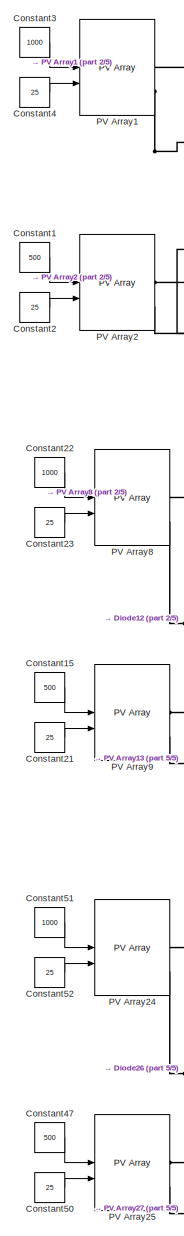
[diagram: root canvas - part 1/5, left side, full height]
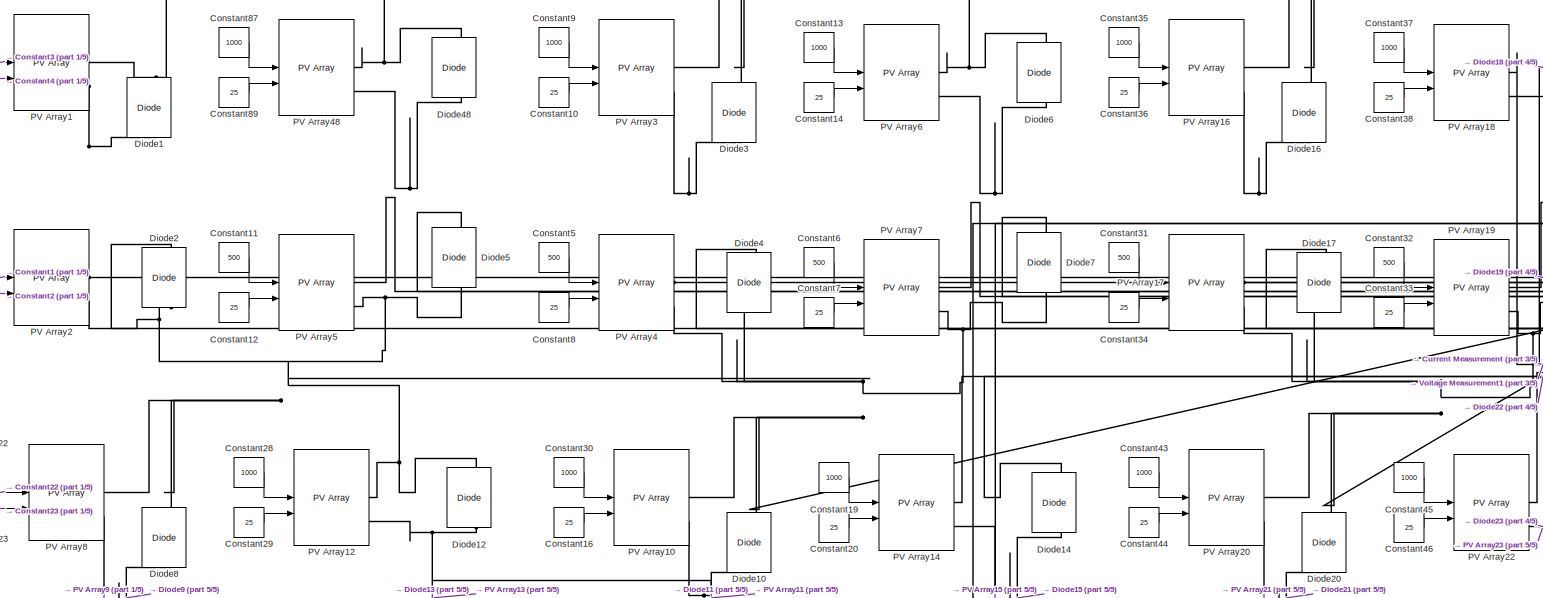
[diagram: root canvas - part 2/5, middle left region]
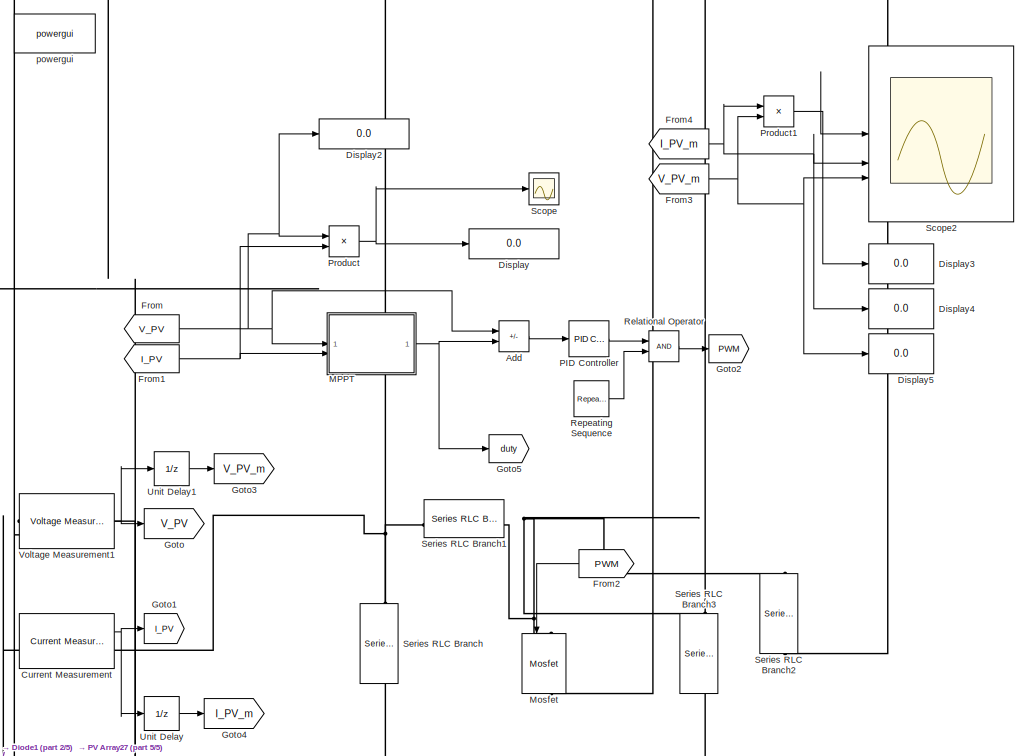
[diagram: root canvas - part 3/5, middle right region]
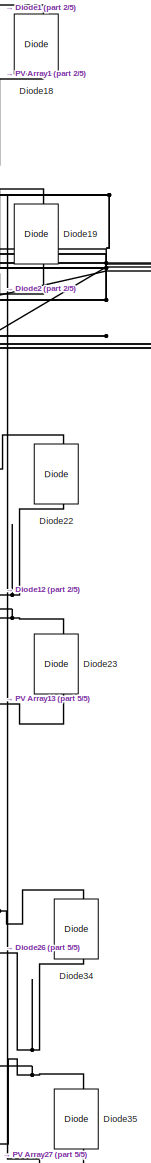
[diagram: root canvas - part 4/5, center side, full height]
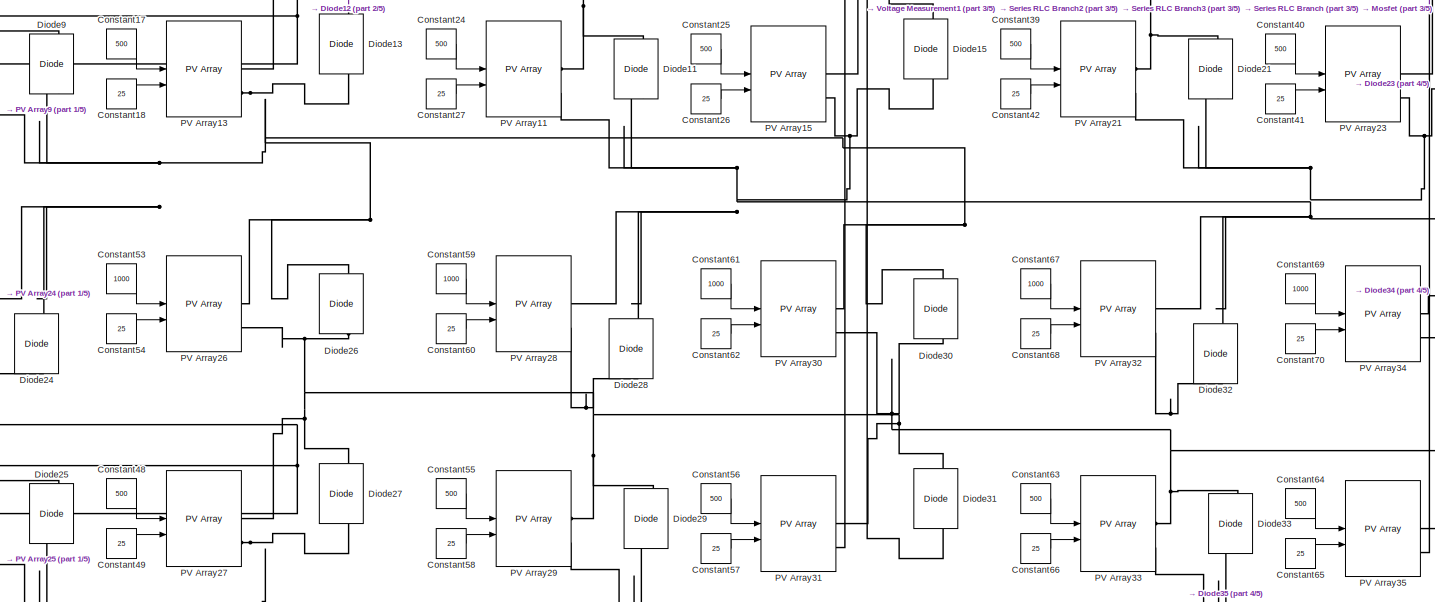
[diagram: root canvas - part 5/5, bottom left region]
MODEL slx_87ef97ad8870
KIND model
CONFIG AbsTol = auto
CONFIG EnableMultiTasking = off
CONFIG FixedStep = auto
CONFIG MaxStep = auto
CONFIG MinStep = auto
CONFIG RelTol = 1e-3
CONFIG SampleTimeConstraint = Unconstrained
CONFIG SolverName = VariableStepAuto
CONFIG StartTime = 0.0
CONFIG StopTime = 0.01
BLOCK [Sum] Add
  IconShape = rectangular
  Inputs = +-
BLOCK [Constant] Constant1
  Value = 500
BLOCK [Constant] Constant10
  Value = 25
BLOCK [Constant] Constant11
  Value = 500
BLOCK [Constant] Constant12
  Value = 25
BLOCK [Constant] Constant13
  Value = 1000
BLOCK [Constant] Constant14
  Value = 25
BLOCK [Constant] Constant15
  Value = 500
BLOCK [Constant] Constant16
  Value = 25
BLOCK [Constant] Constant17
  Value = 500
BLOCK [Constant] Constant18
  Value = 25
BLOCK [Constant] Constant19
  Value = 1000
BLOCK [Constant] Constant2
  Value = 25
BLOCK [Constant] Constant20
  Value = 25
BLOCK [Constant] Constant21
  Value = 25
BLOCK [Constant] Constant22
  Value = 1000
BLOCK [Constant] Constant23
  Value = 25
BLOCK [Constant] Constant24
  Value = 500
BLOCK [Constant] Constant25
  Value = 500
BLOCK [Constant] Constant26
  Value = 25
BLOCK [Constant] Constant27
  Value = 25
BLOCK [Constant] Constant28
  Value = 1000
BLOCK [Constant] Constant29
  Value = 25
BLOCK [Constant] Constant3
  Value = 1000
BLOCK [Constant] Constant30
  Value = 1000
BLOCK [Constant] Constant31
  Value = 500
BLOCK [Constant] Constant32
  Value = 500
BLOCK [Constant] Constant33
  Value = 25
BLOCK [Constant] Constant34
  Value = 25
BLOCK [Constant] Constant35
  Value = 1000
BLOCK [Constant] Constant36
  Value = 25
BLOCK [Constant] Constant37
  Value = 1000
BLOCK [Constant] Constant38
  Value = 25
BLOCK [Constant] Constant39
  Value = 500
BLOCK [Constant] Constant4
  Value = 25
BLOCK [Constant] Constant40
  Value = 500
BLOCK [Constant] Constant41
  Value = 25
BLOCK [Constant] Constant42
  Value = 25
BLOCK [Constant] Constant43
  Value = 1000
BLOCK [Constant] Constant44
  Value = 25
BLOCK [Constant] Constant45
  Value = 1000
BLOCK [Constant] Constant46
  Value = 25
BLOCK [Constant] Constant47
  Value = 500
BLOCK [Constant] Constant48
  Value = 500
BLOCK [Constant] Constant49
  Value = 25
BLOCK [Constant] Constant5
  Value = 500
BLOCK [Constant] Constant50
  Value = 25
BLOCK [Constant] Constant51
  Value = 1000
BLOCK [Constant] Constant52
  Value = 25
BLOCK [Constant] Constant53
  Value = 1000
BLOCK [Constant] Constant54
  Value = 25
BLOCK [Constant] Constant55
  Value = 500
BLOCK [Constant] Constant56
  Value = 500
BLOCK [Constant] Constant57
  Value = 25
BLOCK [Constant] Constant58
  Value = 25
BLOCK [Constant] Constant59
  Value = 1000
BLOCK [Constant] Constant6
  Value = 500
BLOCK [Constant] Constant60
  Value = 25
BLOCK [Constant] Constant61
  Value = 1000
BLOCK [Constant] Constant62
  Value = 25
BLOCK [Constant] Constant63
  Value = 500
BLOCK [Constant] Constant64
  Value = 500
BLOCK [Constant] Constant65
  Value = 25
BLOCK [Constant] Constant66
  Value = 25
BLOCK [Constant] Constant67
  Value = 1000
BLOCK [Constant] Constant68
  Value = 25
BLOCK [Constant] Constant69
  Value = 1000
BLOCK [Constant] Constant7
  Value = 25
BLOCK [Constant] Constant70
  Value = 25
BLOCK [Constant] Constant8
  Value = 25
BLOCK [Constant] Constant87
  Value = 1000
BLOCK [Constant] Constant89
  Value = 25
BLOCK [Constant] Constant9
  Value = 1000
BLOCK [Reference] Current Measurement  REF=spsCurrentMeasurementLib/Current Measurement
  LibrarySourceBlock = sps_lib/Sensors and Measurements/Current Measurement
  SourceBlock = spsCurrentMeasurementLib/Current Measurement
  SourceType = Current Measurement
  UserDataPersistent = on
BLOCK [Reference] Diode1  REF=spsDiodeLib/Diode
  LibrarySourceBlock = sps_lib/Power Electronics/Diode
  NameLocation = right
  SourceBlock = spsDiodeLib/Diode
  SourceType = Diode
BLOCK [Reference] Diode10  REF=spsDiodeLib/Diode
  LibrarySourceBlock = sps_lib/Power Electronics/Diode
  NameLocation = right
  SourceBlock = spsDiodeLib/Diode
  SourceType = Diode
BLOCK [Reference] Diode11  REF=spsDiodeLib/Diode
  LibrarySourceBlock = sps_lib/Power Electronics/Diode
  NameLocation = right
  SourceBlock = spsDiodeLib/Diode
  SourceType = Diode
BLOCK [Reference] Diode12  REF=spsDiodeLib/Diode
  LibrarySourceBlock = sps_lib/Power Electronics/Diode
  NameLocation = right
  SourceBlock = spsDiodeLib/Diode
  SourceType = Diode
BLOCK [Reference] Diode13  REF=spsDiodeLib/Diode
  LibrarySourceBlock = sps_lib/Power Electronics/Diode
  NameLocation = right
  SourceBlock = spsDiodeLib/Diode
  SourceType = Diode
BLOCK [Reference] Diode14  REF=spsDiodeLib/Diode
  LibrarySourceBlock = sps_lib/Power Electronics/Diode
  NameLocation = right
  SourceBlock = spsDiodeLib/Diode
  SourceType = Diode
BLOCK [Reference] Diode15  REF=spsDiodeLib/Diode
  LibrarySourceBlock = sps_lib/Power Electronics/Diode
  NameLocation = right
  SourceBlock = spsDiodeLib/Diode
  SourceType = Diode
BLOCK [Reference] Diode16  REF=spsDiodeLib/Diode
  LibrarySourceBlock = sps_lib/Power Electronics/Diode
  NameLocation = right
  SourceBlock = spsDiodeLib/Diode
  SourceType = Diode
BLOCK [Reference] Diode17  REF=spsDiodeLib/Diode
  LibrarySourceBlock = sps_lib/Power Electronics/Diode
  NameLocation = right
  SourceBlock = spsDiodeLib/Diode
  SourceType = Diode
BLOCK [Reference] Diode18  REF=spsDiodeLib/Diode
  LibrarySourceBlock = sps_lib/Power Electronics/Diode
  NameLocation = right
  SourceBlock = spsDiodeLib/Diode
  SourceType = Diode
BLOCK [Reference] Diode19  REF=spsDiodeLib/Diode
  LibrarySourceBlock = sps_lib/Power Electronics/Diode
  NameLocation = right
  SourceBlock = spsDiodeLib/Diode
  SourceType = Diode
BLOCK [Reference] Diode2  REF=spsDiodeLib/Diode
  LibrarySourceBlock = sps_lib/Power Electronics/Diode
  NameLocation = right
  SourceBlock = spsDiodeLib/Diode
  SourceType = Diode
BLOCK [Reference] Diode20  REF=spsDiodeLib/Diode
  LibrarySourceBlock = sps_lib/Power Electronics/Diode
  NameLocation = right
  SourceBlock = spsDiodeLib/Diode
  SourceType = Diode
BLOCK [Reference] Diode21  REF=spsDiodeLib/Diode
  LibrarySourceBlock = sps_lib/Power Electronics/Diode
  NameLocation = right
  SourceBlock = spsDiodeLib/Diode
  SourceType = Diode
BLOCK [Reference] Diode22  REF=spsDiodeLib/Diode
  LibrarySourceBlock = sps_lib/Power Electronics/Diode
  NameLocation = right
  SourceBlock = spsDiodeLib/Diode
  SourceType = Diode
BLOCK [Reference] Diode23  REF=spsDiodeLib/Diode
  LibrarySourceBlock = sps_lib/Power Electronics/Diode
  NameLocation = right
  SourceBlock = spsDiodeLib/Diode
  SourceType = Diode
BLOCK [Reference] Diode24  REF=spsDiodeLib/Diode
  LibrarySourceBlock = sps_lib/Power Electronics/Diode
  NameLocation = right
  SourceBlock = spsDiodeLib/Diode
  SourceType = Diode
BLOCK [Reference] Diode25  REF=spsDiodeLib/Diode
  LibrarySourceBlock = sps_lib/Power Electronics/Diode
  NameLocation = right
  SourceBlock = spsDiodeLib/Diode
  SourceType = Diode
BLOCK [Reference] Diode26  REF=spsDiodeLib/Diode
  LibrarySourceBlock = sps_lib/Power Electronics/Diode
  NameLocation = right
  SourceBlock = spsDiodeLib/Diode
  SourceType = Diode
BLOCK [Reference] Diode27  REF=spsDiodeLib/Diode
  LibrarySourceBlock = sps_lib/Power Electronics/Diode
  NameLocation = right
  SourceBlock = spsDiodeLib/Diode
  SourceType = Diode
BLOCK [Reference] Diode28  REF=spsDiodeLib/Diode
  LibrarySourceBlock = sps_lib/Power Electronics/Diode
  NameLocation = right
  SourceBlock = spsDiodeLib/Diode
  SourceType = Diode
BLOCK [Reference] Diode29  REF=spsDiodeLib/Diode
  LibrarySourceBlock = sps_lib/Power Electronics/Diode
  NameLocation = right
  SourceBlock = spsDiodeLib/Diode
  SourceType = Diode
BLOCK [Reference] Diode3  REF=spsDiodeLib/Diode
  LibrarySourceBlock = sps_lib/Power Electronics/Diode
  NameLocation = right
  SourceBlock = spsDiodeLib/Diode
  SourceType = Diode
BLOCK [Reference] Diode30  REF=spsDiodeLib/Diode
  LibrarySourceBlock = sps_lib/Power Electronics/Diode
  NameLocation = right
  SourceBlock = spsDiodeLib/Diode
  SourceType = Diode
BLOCK [Reference] Diode31  REF=spsDiodeLib/Diode
  LibrarySourceBlock = sps_lib/Power Electronics/Diode
  NameLocation = right
  SourceBlock = spsDiodeLib/Diode
  SourceType = Diode
BLOCK [Reference] Diode32  REF=spsDiodeLib/Diode
  LibrarySourceBlock = sps_lib/Power Electronics/Diode
  NameLocation = right
  SourceBlock = spsDiodeLib/Diode
  SourceType = Diode
BLOCK [Reference] Diode33  REF=spsDiodeLib/Diode
  LibrarySourceBlock = sps_lib/Power Electronics/Diode
  NameLocation = right
  SourceBlock = spsDiodeLib/Diode
  SourceType = Diode
BLOCK [Reference] Diode34  REF=spsDiodeLib/Diode
  LibrarySourceBlock = sps_lib/Power Electronics/Diode
  NameLocation = right
  SourceBlock = spsDiodeLib/Diode
  SourceType = Diode
BLOCK [Reference] Diode35  REF=spsDiodeLib/Diode
  LibrarySourceBlock = sps_lib/Power Electronics/Diode
  NameLocation = right
  SourceBlock = spsDiodeLib/Diode
  SourceType = Diode
BLOCK [Reference] Diode4  REF=spsDiodeLib/Diode
  LibrarySourceBlock = sps_lib/Power Electronics/Diode
  NameLocation = right
  SourceBlock = spsDiodeLib/Diode
  SourceType = Diode
BLOCK [Reference] Diode48  REF=spsDiodeLib/Diode
  LibrarySourceBlock = sps_lib/Power Electronics/Diode
  NameLocation = right
  SourceBlock = spsDiodeLib/Diode
  SourceType = Diode
BLOCK [Reference] Diode5  REF=spsDiodeLib/Diode
  LibrarySourceBlock = sps_lib/Power Electronics/Diode
  NameLocation = right
  SourceBlock = spsDiodeLib/Diode
  SourceType = Diode
BLOCK [Reference] Diode6  REF=spsDiodeLib/Diode
  LibrarySourceBlock = sps_lib/Power Electronics/Diode
  NameLocation = right
  SourceBlock = spsDiodeLib/Diode
  SourceType = Diode
BLOCK [Reference] Diode7  REF=spsDiodeLib/Diode
  LibrarySourceBlock = sps_lib/Power Electronics/Diode
  NameLocation = right
  SourceBlock = spsDiodeLib/Diode
  SourceType = Diode
BLOCK [Reference] Diode8  REF=spsDiodeLib/Diode
  LibrarySourceBlock = sps_lib/Power Electronics/Diode
  NameLocation = right
  SourceBlock = spsDiodeLib/Diode
  SourceType = Diode
BLOCK [Reference] Diode9  REF=spsDiodeLib/Diode
  LibrarySourceBlock = sps_lib/Power Electronics/Diode
  NameLocation = right
  SourceBlock = spsDiodeLib/Diode
  SourceType = Diode
BLOCK [Display] Display
  Decimation = 1
BLOCK [Display] Display2
  Decimation = 1
BLOCK [Display] Display3
  Decimation = 1
BLOCK [Display] Display4
  Decimation = 1
BLOCK [Display] Display5
  Decimation = 1
BLOCK [From] From
  GotoTag = V_PV
BLOCK [From] From1
  GotoTag = I_PV
BLOCK [From] From2
  GotoTag = PWM
  NameLocation = top
BLOCK [From] From3
  GotoTag = V_PV_m
BLOCK [From] From4
  GotoTag = I_PV_m
BLOCK [Goto] Goto
  GotoTag = V_PV
BLOCK [Goto] Goto1
  GotoTag = I_PV
BLOCK [Goto] Goto2
  GotoTag = PWM
  NameLocation = top
BLOCK [Goto] Goto3
  GotoTag = V_PV_m
BLOCK [Goto] Goto4
  GotoTag = I_PV_m
BLOCK [Goto] Goto5
  GotoTag = duty
  NameLocation = top
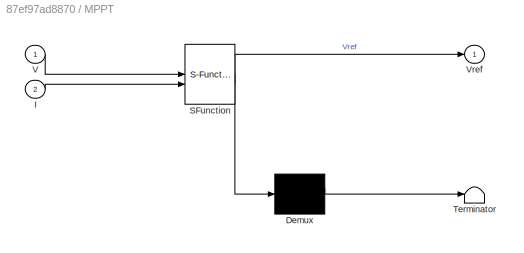
BLOCK [SubSystem] MPPT
  ErrorFcn = Stateflow.Translate.translate
  PermitHierarchicalResolution = ExplicitOnly
  SFBlockType = MATLAB Function
  TreatAsAtomicUnit = on
BLOCK [Demux] MPPT/ Demux 
  Outputs = 1
BLOCK [S-Function] MPPT/ SFunction 
  EnableBusSupport = on
  FunctionName = sf_sfun
  PortCounts = [2 2]
  SFcnIsStateOwnerBlock = off
  SFunctionDeploymentMode = off
  Tag = Stateflow S-Function 2
BLOCK [Terminator] MPPT/ Terminator 
BLOCK [Inport] MPPT/I
  Port = 2
BLOCK [Inport] MPPT/V
BLOCK [Outport] MPPT/Vref
BLOCK [Reference] Mosfet  REF=spsMosfetLib/Mosfet
  LibrarySourceBlock = sps_lib/Power Electronics/Mosfet
  NameLocation = left
  SourceBlock = spsMosfetLib/Mosfet
  SourceType = Mosfet
BLOCK [Reference] PID Controller  REF=slpidlib/PID Controller
  LibrarySourceBlock = simulink/Continuous/PID Controller
  SourceBlock = slpidlib/PID Controller
  SourceType = PID 1dof
BLOCK [Reference] PV Array1  REF=spsPVArrayLib/PV Array
  LibrarySourceBlock = sps_lib/Sources/PV Array
  SourceBlock = spsPVArrayLib/PV Array
  SourceType = PV array
BLOCK [Reference] PV Array10  REF=spsPVArrayLib/PV Array
  LibrarySourceBlock = sps_lib/Sources/PV Array
  SourceBlock = spsPVArrayLib/PV Array
  SourceType = PV array
BLOCK [Reference] PV Array11  REF=spsPVArrayLib/PV Array
  LibrarySourceBlock = sps_lib/Sources/PV Array
  SourceBlock = spsPVArrayLib/PV Array
  SourceType = PV array
BLOCK [Reference] PV Array12  REF=spsPVArrayLib/PV Array
  LibrarySourceBlock = sps_lib/Sources/PV Array
  SourceBlock = spsPVArrayLib/PV Array
  SourceType = PV array
BLOCK [Reference] PV Array13  REF=spsPVArrayLib/PV Array
  LibrarySourceBlock = sps_lib/Sources/PV Array
  SourceBlock = spsPVArrayLib/PV Array
  SourceType = PV array
BLOCK [Reference] PV Array14  REF=spsPVArrayLib/PV Array
  LibrarySourceBlock = sps_lib/Sources/PV Array
  SourceBlock = spsPVArrayLib/PV Array
  SourceType = PV array
BLOCK [Reference] PV Array15  REF=spsPVArrayLib/PV Array
  LibrarySourceBlock = sps_lib/Sources/PV Array
  SourceBlock = spsPVArrayLib/PV Array
  SourceType = PV array
BLOCK [Reference] PV Array16  REF=spsPVArrayLib/PV Array
  LibrarySourceBlock = sps_lib/Sources/PV Array
  SourceBlock = spsPVArrayLib/PV Array
  SourceType = PV array
BLOCK [Reference] PV Array17  REF=spsPVArrayLib/PV Array
  LibrarySourceBlock = sps_lib/Sources/PV Array
  SourceBlock = spsPVArrayLib/PV Array
  SourceType = PV array
BLOCK [Reference] PV Array18  REF=spsPVArrayLib/PV Array
  LibrarySourceBlock = sps_lib/Sources/PV Array
  SourceBlock = spsPVArrayLib/PV Array
  SourceType = PV array
BLOCK [Reference] PV Array19  REF=spsPVArrayLib/PV Array
  LibrarySourceBlock = sps_lib/Sources/PV Array
  SourceBlock = spsPVArrayLib/PV Array
  SourceType = PV array
BLOCK [Reference] PV Array2  REF=spsPVArrayLib/PV Array
  LibrarySourceBlock = sps_lib/Sources/PV Array
  SourceBlock = spsPVArrayLib/PV Array
  SourceType = PV array
BLOCK [Reference] PV Array20  REF=spsPVArrayLib/PV Array
  LibrarySourceBlock = sps_lib/Sources/PV Array
  SourceBlock = spsPVArrayLib/PV Array
  SourceType = PV array
BLOCK [Reference] PV Array21  REF=spsPVArrayLib/PV Array
  LibrarySourceBlock = sps_lib/Sources/PV Array
  SourceBlock = spsPVArrayLib/PV Array
  SourceType = PV array
BLOCK [Reference] PV Array22  REF=spsPVArrayLib/PV Array
  LibrarySourceBlock = sps_lib/Sources/PV Array
  SourceBlock = spsPVArrayLib/PV Array
  SourceType = PV array
BLOCK [Reference] PV Array23  REF=spsPVArrayLib/PV Array
  LibrarySourceBlock = sps_lib/Sources/PV Array
  SourceBlock = spsPVArrayLib/PV Array
  SourceType = PV array
BLOCK [Reference] PV Array24  REF=spsPVArrayLib/PV Array
  LibrarySourceBlock = sps_lib/Sources/PV Array
  SourceBlock = spsPVArrayLib/PV Array
  SourceType = PV array
BLOCK [Reference] PV Array25  REF=spsPVArrayLib/PV Array
  LibrarySourceBlock = sps_lib/Sources/PV Array
  SourceBlock = spsPVArrayLib/PV Array
  SourceType = PV array
BLOCK [Reference] PV Array26  REF=spsPVArrayLib/PV Array
  LibrarySourceBlock = sps_lib/Sources/PV Array
  SourceBlock = spsPVArrayLib/PV Array
  SourceType = PV array
BLOCK [Reference] PV Array27  REF=spsPVArrayLib/PV Array
  LibrarySourceBlock = sps_lib/Sources/PV Array
  SourceBlock = spsPVArrayLib/PV Array
  SourceType = PV array
BLOCK [Reference] PV Array28  REF=spsPVArrayLib/PV Array
  LibrarySourceBlock = sps_lib/Sources/PV Array
  SourceBlock = spsPVArrayLib/PV Array
  SourceType = PV array
BLOCK [Reference] PV Array29  REF=spsPVArrayLib/PV Array
  LibrarySourceBlock = sps_lib/Sources/PV Array
  SourceBlock = spsPVArrayLib/PV Array
  SourceType = PV array
BLOCK [Reference] PV Array3  REF=spsPVArrayLib/PV Array
  LibrarySourceBlock = sps_lib/Sources/PV Array
  SourceBlock = spsPVArrayLib/PV Array
  SourceType = PV array
BLOCK [Reference] PV Array30  REF=spsPVArrayLib/PV Array
  LibrarySourceBlock = sps_lib/Sources/PV Array
  SourceBlock = spsPVArrayLib/PV Array
  SourceType = PV array
BLOCK [Reference] PV Array31  REF=spsPVArrayLib/PV Array
  LibrarySourceBlock = sps_lib/Sources/PV Array
  SourceBlock = spsPVArrayLib/PV Array
  SourceType = PV array
BLOCK [Reference] PV Array32  REF=spsPVArrayLib/PV Array
  LibrarySourceBlock = sps_lib/Sources/PV Array
  SourceBlock = spsPVArrayLib/PV Array
  SourceType = PV array
BLOCK [Reference] PV Array33  REF=spsPVArrayLib/PV Array
  LibrarySourceBlock = sps_lib/Sources/PV Array
  SourceBlock = spsPVArrayLib/PV Array
  SourceType = PV array
BLOCK [Reference] PV Array34  REF=spsPVArrayLib/PV Array
  LibrarySourceBlock = sps_lib/Sources/PV Array
  SourceBlock = spsPVArrayLib/PV Array
  SourceType = PV array
BLOCK [Reference] PV Array35  REF=spsPVArrayLib/PV Array
  LibrarySourceBlock = sps_lib/Sources/PV Array
  SourceBlock = spsPVArrayLib/PV Array
  SourceType = PV array
BLOCK [Reference] PV Array4  REF=spsPVArrayLib/PV Array
  LibrarySourceBlock = sps_lib/Sources/PV Array
  SourceBlock = spsPVArrayLib/PV Array
  SourceType = PV array
BLOCK [Reference] PV Array48  REF=spsPVArrayLib/PV Array
  LibrarySourceBlock = sps_lib/Sources/PV Array
  SourceBlock = spsPVArrayLib/PV Array
  SourceType = PV array
BLOCK [Reference] PV Array5  REF=spsPVArrayLib/PV Array
  LibrarySourceBlock = sps_lib/Sources/PV Array
  SourceBlock = spsPVArrayLib/PV Array
  SourceType = PV array
BLOCK [Reference] PV Array6  REF=spsPVArrayLib/PV Array
  LibrarySourceBlock = sps_lib/Sources/PV Array
  SourceBlock = spsPVArrayLib/PV Array
  SourceType = PV array
BLOCK [Reference] PV Array7  REF=spsPVArrayLib/PV Array
  LibrarySourceBlock = sps_lib/Sources/PV Array
  SourceBlock = spsPVArrayLib/PV Array
  SourceType = PV array
BLOCK [Reference] PV Array8  REF=spsPVArrayLib/PV Array
  LibrarySourceBlock = sps_lib/Sources/PV Array
  SourceBlock = spsPVArrayLib/PV Array
  SourceType = PV array
BLOCK [Reference] PV Array9  REF=spsPVArrayLib/PV Array
  LibrarySourceBlock = sps_lib/Sources/PV Array
  SourceBlock = spsPVArrayLib/PV Array
  SourceType = PV array
BLOCK [Product] Product
BLOCK [Product] Product1
BLOCK [RelationalOperator] Relational Operator
  InputSameDT = off
  OutDataTypeStr = boolean
  RndMeth = Simplest
BLOCK [Reference] Repeating Sequence  REF=simulink/Sources/Repeating
Sequence
  SourceBlock = simulink/Sources/Repeating\nSequence
  SourceType = Repeating table
BLOCK [Scope] Scope
  Floating = off
  NumInputPorts = 1
  ScopeSpecificationString = Simulink.scopes.TimeScopeBlockCfg('CurrentConfiguration', extmgr.ConfigurationSet(extmgr.Configuration('Core','General UI',true),extmgr.Configuration('Core','Source UI',true),extmgr.Configuration('Sources','WiredSimulink',true),extmgr.Configuration('Visuals','Time Domain',true,'SerializedDisplays',{struct('MinYLimReal','-24.53787','MaxYLimReal','130.66511','YLabelReal','','MinYLimMag','0.00000','M...<+1435ch>
BLOCK [Scope] Scope2
  Floating = off
  NumInputPorts = 3
  ScopeSpecificationString = Simulink.scopes.TimeScopeBlockCfg('CurrentConfiguration', extmgr.ConfigurationSet(extmgr.Configuration('Core','General UI',true,'FigureColor',[1 1 1]),extmgr.Configuration('Core','Source UI',true),extmgr.Configuration('Sources','WiredSimulink',true,'DataLoggingVariableName','ScopeData2'),extmgr.Configuration('Visuals','Time Domain',true,'SerializedDisplays',{struct('MinYLimReal','-55.00000','MaxYL...<+3173ch>
BLOCK [Reference] Series RLC Branch  REF=spsSeriesRLCBranchLib/Series RLC Branch
  LibrarySourceBlock = sps_lib/Passives/Series RLC Branch
  NameLocation = left
  SourceBlock = spsSeriesRLCBranchLib/Series RLC Branch
  SourceType = Series RLC Branch
BLOCK [Reference] Series RLC Branch1  REF=spsSeriesRLCBranchLib/Series RLC Branch
  LibrarySourceBlock = sps_lib/Passives/Series RLC Branch
  NameLocation = top
  SourceBlock = spsSeriesRLCBranchLib/Series RLC Branch
  SourceType = Series RLC Branch
BLOCK [Reference] Series RLC Branch2  REF=spsSeriesRLCBranchLib/Series RLC Branch
  LibrarySourceBlock = sps_lib/Passives/Series RLC Branch
  NameLocation = left
  SourceBlock = spsSeriesRLCBranchLib/Series RLC Branch
  SourceType = Series RLC Branch
BLOCK [Reference] Series RLC Branch3  REF=spsSeriesRLCBranchLib/Series RLC Branch
  LibrarySourceBlock = sps_lib/Passives/Series RLC Branch
  NameLocation = left
  SourceBlock = spsSeriesRLCBranchLib/Series RLC Branch
  SourceType = Series RLC Branch
BLOCK [UnitDelay] Unit Delay
  HasFrameUpgradeWarning = on
  SampleTime = -1
BLOCK [UnitDelay] Unit Delay1
  HasFrameUpgradeWarning = on
  SampleTime = -1
BLOCK [Reference] Voltage Measurement1  REF=spsVoltageMeasurementLib/Voltage Measurement
  LibrarySourceBlock = sps_lib/Sensors and Measurements/Voltage Measurement
  SourceBlock = spsVoltageMeasurementLib/Voltage Measurement
  SourceType = Voltage Measurement
  UserDataPersistent = on
BLOCK [Reference] powergui  REF=sps_lib/powergui
  LibrarySourceBlock = sps_lib/powergui
  Priority = 1
  SourceBlock = sps_lib/powergui
  SourceType = PSB option menu block
LINE Add:1 -> PID Controller:1
LINE Constant10:1 -> PV Array3:2
LINE Constant11:1 -> PV Array5:1
LINE Constant12:1 -> PV Array5:2
LINE Constant13:1 -> PV Array6:1
LINE Constant14:1 -> PV Array6:2
LINE Constant15:1 -> PV Array9:1
LINE Constant16:1 -> PV Array10:2
LINE Constant17:1 -> PV Array13:1
LINE Constant18:1 -> PV Array13:2
LINE Constant19:1 -> PV Array14:1
LINE Constant1:1 -> PV Array2:1
LINE Constant20:1 -> PV Array14:2
LINE Constant21:1 -> PV Array9:2
LINE Constant22:1 -> PV Array8:1
LINE Constant23:1 -> PV Array8:2
LINE Constant24:1 -> PV Array11:1
LINE Constant25:1 -> PV Array15:1
LINE Constant26:1 -> PV Array15:2
LINE Constant27:1 -> PV Array11:2
LINE Constant28:1 -> PV Array12:1
LINE Constant29:1 -> PV Array12:2
LINE Constant2:1 -> PV Array2:2
LINE Constant30:1 -> PV Array10:1
LINE Constant31:1 -> PV Array17:1
LINE Constant32:1 -> PV Array19:1
LINE Constant33:1 -> PV Array19:2
LINE Constant34:1 -> PV Array17:2
LINE Constant35:1 -> PV Array16:1
LINE Constant36:1 -> PV Array16:2
LINE Constant37:1 -> PV Array18:1
LINE Constant38:1 -> PV Array18:2
LINE Constant39:1 -> PV Array21:1
LINE Constant3:1 -> PV Array1:1
LINE Constant40:1 -> PV Array23:1
LINE Constant41:1 -> PV Array23:2
LINE Constant42:1 -> PV Array21:2
LINE Constant43:1 -> PV Array20:1
LINE Constant44:1 -> PV Array20:2
LINE Constant45:1 -> PV Array22:1
LINE Constant46:1 -> PV Array22:2
LINE Constant47:1 -> PV Array25:1
LINE Constant48:1 -> PV Array27:1
LINE Constant49:1 -> PV Array27:2
LINE Constant4:1 -> PV Array1:2
LINE Constant50:1 -> PV Array25:2
LINE Constant51:1 -> PV Array24:1
LINE Constant52:1 -> PV Array24:2
LINE Constant53:1 -> PV Array26:1
LINE Constant54:1 -> PV Array26:2
LINE Constant55:1 -> PV Array29:1
LINE Constant56:1 -> PV Array31:1
LINE Constant57:1 -> PV Array31:2
LINE Constant58:1 -> PV Array29:2
LINE Constant59:1 -> PV Array28:1
LINE Constant5:1 -> PV Array4:1
LINE Constant60:1 -> PV Array28:2
LINE Constant61:1 -> PV Array30:1
LINE Constant62:1 -> PV Array30:2
LINE Constant63:1 -> PV Array33:1
LINE Constant64:1 -> PV Array35:1
LINE Constant65:1 -> PV Array35:2
LINE Constant66:1 -> PV Array33:2
LINE Constant67:1 -> PV Array32:1
LINE Constant68:1 -> PV Array32:2
LINE Constant69:1 -> PV Array34:1
LINE Constant6:1 -> PV Array7:1
LINE Constant70:1 -> PV Array34:2
LINE Constant7:1 -> PV Array7:2
LINE Constant87:1 -> PV Array48:1
LINE Constant89:1 -> PV Array48:2
LINE Constant8:1 -> PV Array4:2
LINE Constant9:1 -> PV Array3:1
NET Current Measurement:1 -> Goto1:1, Unit Delay:1
NET From1:1 -> MPPT:2, Product:2
LINE From2:1 -> Mosfet:1
NET From3:1 -> Display5:1, Product1:2, Scope2:3
NET From4:1 -> Display4:1, Product1:1, Scope2:2
NET From:1 -> Add:1, Display2:1, MPPT:1, Product:1
NET MPPT:1 -> Add:2, Goto5:1
LINE PID Controller:1 -> Relational Operator:1
NET Product1:1 -> Display3:1, Scope2:1
NET Product:1 -> Display:1, Scope:1
LINE Relational Operator:1 -> Goto2:1
LINE Repeating Sequence:1 -> Relational Operator:2
LINE Unit Delay1:1 -> Goto3:1
LINE Unit Delay:1 -> Goto4:1
NET Voltage Measurement1:1 -> Goto:1, Unit Delay1:1
PNET net1: Current Measurement:LConn1 -- Diode16:RConn1 -- Diode18:RConn1 -- Diode1:RConn1 -- Diode3:RConn1 -- Diode48:RConn1 -- Diode6:RConn1 -- PV Array16:RConn1 -- PV Array18:RConn1 -- PV Array1:RConn1 -- PV Array3:RConn1 -- PV Array48:RConn1 -- PV Array6:RConn1 -- Voltage Measurement1:LConn1
PNET net2: Current Measurement:RConn1 -- Series RLC Branch1:RConn1 -- Series RLC Branch:LConn1
PNET net3: Diode10:LConn1 -- Diode11:RConn1 -- Diode12:LConn1 -- Diode13:RConn1 -- Diode14:LConn1 -- Diode15:RConn1 -- Diode20:LConn1 -- Diode21:RConn1 -- Diode22:LConn1 -- Diode23:RConn1 -- Diode8:LConn1 -- Diode9:RConn1 -- PV Array10:RConn2 -- PV Array11:RConn1 -- PV Array12:RConn2 -- PV Array13:RConn1 -- PV Array14:RConn2 -- PV Array15:RConn1 -- PV Array20:RConn2 -- PV Array21:RConn1 -- PV Array22:RConn2 -- PV Array23:RConn1 -- PV Array8:RConn2 -- PV Array9:RConn1
PNET net4: Diode10:RConn1 -- Diode12:RConn1 -- Diode14:RConn1 -- Diode17:LConn1 -- Diode19:LConn1 -- Diode20:RConn1 -- Diode22:RConn1 -- Diode2:LConn1 -- Diode4:LConn1 -- Diode5:LConn1 -- Diode7:LConn1 -- Diode8:RConn1 -- PV Array10:RConn1 -- PV Array12:RConn1 -- PV Array14:RConn1 -- PV Array17:RConn2 -- PV Array19:RConn2 -- PV Array20:RConn1 -- PV Array22:RConn1 -- PV Array2:RConn2 -- PV Array4:RConn2 -- PV Array5:RConn2 -- PV Array7:RConn2 -- PV Array8:RConn1
PNET net5: Diode11:LConn1 -- Diode13:LConn1 -- Diode15:LConn1 -- Diode21:LConn1 -- Diode23:LConn1 -- Diode24:RConn1 -- Diode26:RConn1 -- Diode28:RConn1 -- Diode30:RConn1 -- Diode32:RConn1 -- Diode34:RConn1 -- Diode9:LConn1 -- PV Array11:RConn2 -- PV Array13:RConn2 -- PV Array15:RConn2 -- PV Array21:RConn2 -- PV Array23:RConn2 -- PV Array24:RConn1 -- PV Array26:RConn1 -- PV Array28:RConn1 -- PV Array30:RConn1 -- PV Array32:RConn1 -- PV Array34:RConn1 -- PV Array9:RConn2
PNET net6: Diode16:LConn1 -- Diode17:RConn1 -- Diode18:LConn1 -- Diode19:RConn1 -- Diode1:LConn1 -- Diode2:RConn1 -- Diode3:LConn1 -- Diode48:LConn1 -- Diode4:RConn1 -- Diode5:RConn1 -- Diode6:LConn1 -- Diode7:RConn1 -- PV Array16:RConn2 -- PV Array17:RConn1 -- PV Array18:RConn2 -- PV Array19:RConn1 -- PV Array1:RConn2 -- PV Array2:RConn1 -- PV Array3:RConn2 -- PV Array48:RConn2 -- PV Array4:RConn1 -- PV Array5:RConn1 -- PV Array6:RConn2 -- PV Array7:RConn1
PNET net7: Diode24:LConn1 -- Diode25:RConn1 -- Diode26:LConn1 -- Diode27:RConn1 -- Diode28:LConn1 -- Diode29:RConn1 -- Diode30:LConn1 -- Diode31:RConn1 -- Diode32:LConn1 -- Diode33:RConn1 -- Diode34:LConn1 -- Diode35:RConn1 -- PV Array24:RConn2 -- PV Array25:RConn1 -- PV Array26:RConn2 -- PV Array27:RConn1 -- PV Array28:RConn2 -- PV Array29:RConn1 -- PV Array30:RConn2 -- PV Array31:RConn1 -- PV Array32:RConn2 -- PV Array33:RConn1 -- PV Array34:RConn2 -- PV Array35:RConn1
PNET net8: Diode25:LConn1 -- Diode27:LConn1 -- Diode29:LConn1 -- Diode31:LConn1 -- Diode33:LConn1 -- Diode35:LConn1 -- Mosfet:RConn1 -- PV Array25:RConn2 -- PV Array27:RConn2 -- PV Array29:RConn2 -- PV Array31:RConn2 -- PV Array33:RConn2 -- PV Array35:RConn2 -- Series RLC Branch2:RConn1 -- Series RLC Branch3:RConn1 -- Series RLC Branch:RConn1 -- Voltage Measurement1:LConn2
PNET net9: Mosfet:LConn1 -- Series RLC Branch1:LConn1 -- Series RLC Branch2:LConn1 -- Series RLC Branch3:LConn1
note: NET lines group one-source signal fan-out (src -> all destinations, sorted); 1:1 wires keep LINE; PNET lines group multi-terminal physical nets as a canonical sorted terminal list (undirected conserving connections); 2-terminal nets keep the pairwise PLINE form
CHART MPPT states=1 transitions=1
  STATE_LABEL 'eML_blk_kernel()'
  STATE_LABEL "SCRIPT:\nfunction Vref = MPPT(V,I)\n\nVrefmax = 450;\nVrefmin = 0;\nVrefinit = 400;\ndeltaVref =1;\npersistent Volt Polt Vreffolt;\n\ndataType = 'double';\n\nif isempty (Volt)\n    Volt = 0;\n    Polt = 0;\n    Vreffolt = Vrefinit;\nend\n\nP=V*I;\ndV = V-Volt;\ndP = P-Polt;\n\nif dP ~= 0\n    if dP < 0\n        if dV < 0\n            Vref = Vreffolt + deltaVref;\n        else\n            Vref = Vreffolt - deltaVref;\n     ...<+281ch>"
CHART  states=0 transitions=0
